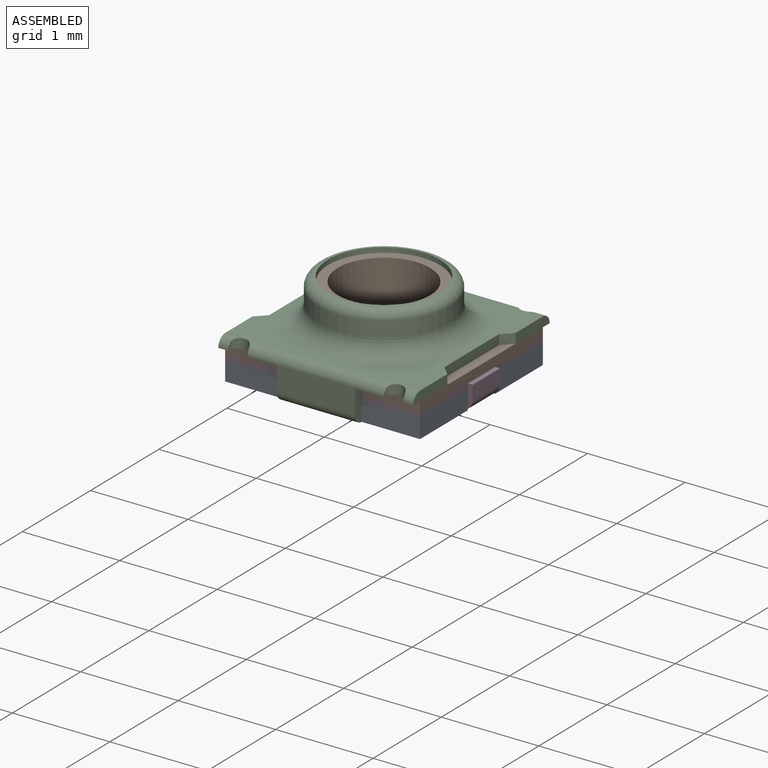
[diagram: assembled view]
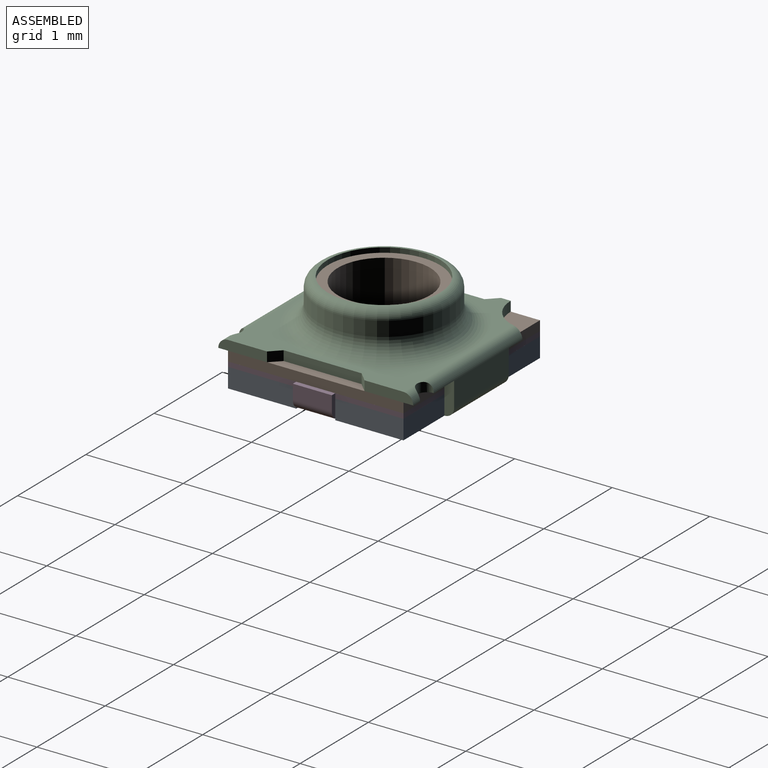
[diagram: assembled view, second angle]
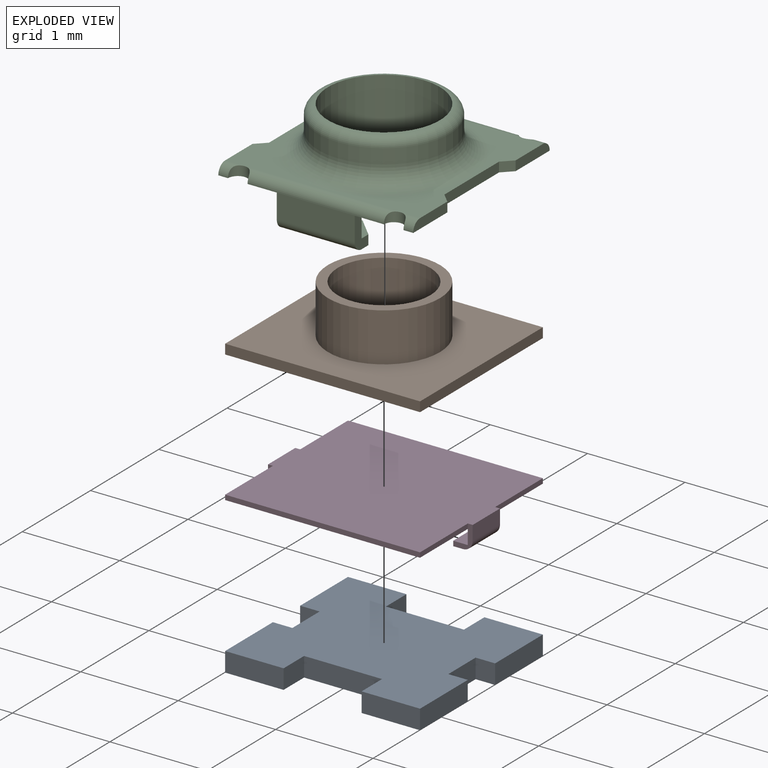
[diagram: exploded view]
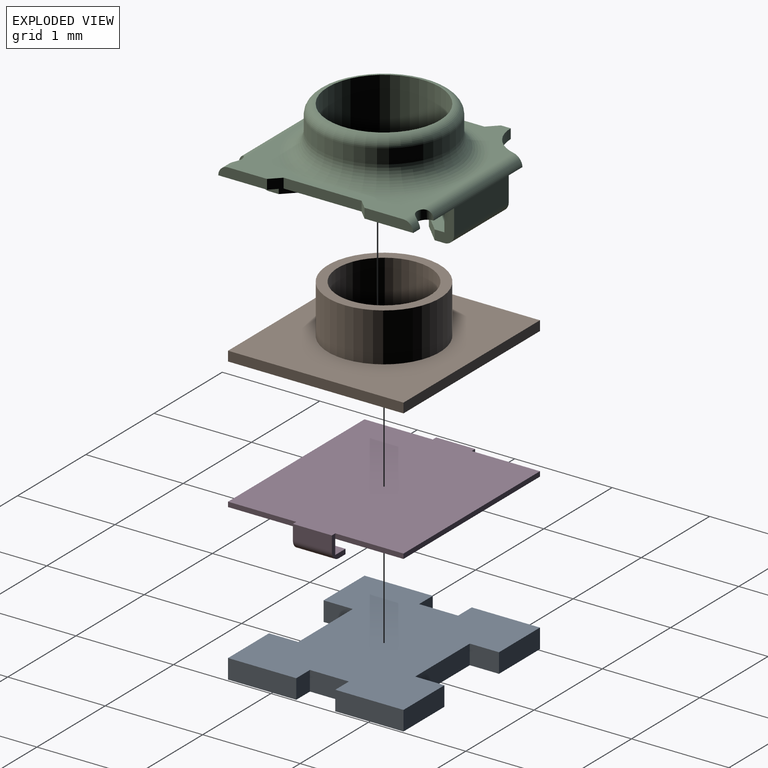
[diagram: exploded view, second angle]
ASSEMBLY  parts=4 mates=3
PART A: 22 faces, bbox 2x1.8x0.2 mm
  f0: plane 0.6x0.2mm, normal (0,-1,0), area 0.1mm2, adj f1,f19,f20,f21
  f1: plane 0.3x0.2mm, normal (1,0,0), area 0.1mm2, adj f0,f2,f20,f21
  f2: plane 0.8x0.2mm, normal (0,-1,0), area 0.2mm2, adj f1,f3,f20,f21
  f3: plane 0.3x0.2mm, normal (-1,0,0), area 0.1mm2, adj f2,f4,f20,f21
  f4: plane 0.6x0.2mm, normal (0,-1,0), area 0.1mm2, adj f3,f5,f20,f21
  f5: plane 0.7x0.2mm, normal (1,0,0), area 0.1mm2, adj f4,f6,f20,f21
  f6: plane 0.2x0.2mm, normal (0,1,0), area 0mm2, adj f5,f7,f20,f21
  f7: plane 0.4x0.2mm, normal (1,0,0), area 0.1mm2, adj f6,f8,f20,f21
  f8: plane 0.2x0.2mm, normal (0,-1,0), area 0mm2, adj f7,f9,f20,f21
  f9: plane 0.7x0.2mm, normal (1,0,0), area 0.1mm2, adj f8,f10,f20,f21
  f10: plane 0.6x0.2mm, normal (0,1,0), area 0.1mm2, adj f9,f11,f20,f21
  f11: plane 0.3x0.2mm, normal (-1,0,0), area 0.1mm2, adj f10,f12,f20,f21
  f12: plane 0.8x0.2mm, normal (0,1,0), area 0.2mm2, adj f11,f13,f20,f21
  f13: plane 0.3x0.2mm, normal (1,0,0), area 0.1mm2, adj f12,f14,f20,f21
  f14: plane 0.6x0.2mm, normal (0,1,0), area 0.1mm2, adj f13,f15,f20,f21
  f15: plane 0.7x0.2mm, normal (-1,0,0), area 0.1mm2, adj f14,f16,f20,f21
  f16: plane 0.2x0.2mm, normal (0,-1,0), area 0mm2, adj f15,f17,f20,f21
  f17: plane 0.4x0.2mm, normal (-1,0,0), area 0.1mm2, adj f16,f18,f20,f21
  f18: plane 0.2x0.2mm, normal (0,1,0), area 0mm2, adj f17,f19,f20,f21
  f19: plane 0.7x0.2mm, normal (-1,0,0), area 0.1mm2, adj f0,f18,f20,f21
  f20: plane 2x1.8mm, normal (0,0,1), area 3mm2, adj f0,f1,f2,f3,f4,f5,f6,f7
  f21: plane 2x1.8mm, normal (0,0,-1), area 3mm2, adj f0,f1,f2,f3,f4,f5,f6,f7
PART B: 11 faces, bbox 2x1.8x0.6 mm
  f0: plane 0.95x0.95mm, normal (0,0,1), area 0.5mm2, adj f4,f8
  f1: plane 2x0.1mm, normal (0,-1,0), area 0.2mm2, adj f2,f5,f6,f7
  f2: plane 1.8x0.1mm, normal (1,0,0), area 0.2mm2, adj f1,f3,f6,f7
  f3: plane 2x0.1mm, normal (0,1,0), area 0.2mm2, adj f2,f5,f6,f7
  f4: cylinder r=0.25mm len=0.5mm, axis (0,0,-1), area 0.2mm2, adj f0,f7
  f5: plane 1.8x0.1mm, normal (-1,0,0), area 0.2mm2, adj f1,f3,f6,f7
  f6: plane 2x1.8mm, normal (0,0,1), area 2.6mm2, adj f1,f2,f3,f5,f9
  f7: plane 2x1.8mm, normal (0,0,-1), area 3.4mm2, adj f1,f2,f3,f4,f5
  f8: cylinder r=0.47mm len=0.95mm, axis (0,0,-1), area 1.5mm2, adj f0,f10
  f9: cylinder r=0.57mm len=1.15mm, axis (0,0,-1), area 1.8mm2, adj f6,f10
  f10: plane 1.15x1.15mm, normal (0,0,1), area 0.3mm2, adj f8,f9
PART C: 45 faces, bbox 2x2x0.9 mm
  f0: plane 0.1x0.1mm, normal (0,-1,0), area 0mm2, adj f2,f5,f26,f43
  f1: plane 0.5x0.1mm, normal (0,1,0), area 0mm2, adj f2,f5,f31,f41
  f2: plane 2x2mm, normal (0,0,1), area 2.4mm2, adj f0,f1,f6,f7,f10,f11,f14,f17
  f3: plane 0.8x0.25mm, normal (1,0,0), area 0.2mm2, adj f19,f23,f34,f36
  f4: plane 0.8x0.25mm, normal (-1,0,0), area 0.2mm2, adj f14,f17,f33,f37
  f5: plane 2x1.8mm, normal (0,0,-1), area 0.9mm2, adj f0,f1,f6,f7,f26,f31,f32,f33
  f6: plane 0.5x0.1mm, normal (0,-1,0), area 0mm2, adj f2,f5,f35,f44
  f7: plane 0.5x0.1mm, normal (0,1,0), area 0mm2, adj f2,f5,f32,f42
  f8: plane 0.8x0.3mm, normal (0,0,1), area 0.2mm2, adj f14,f15,f16,f17,f18,f37
  f9: plane 0.8x0.3mm, normal (0,0,-1), area 0.2mm2, adj f11,f14,f15,f16,f17,f18
  f10: plane 0.8x0.25mm, normal (-1,0,0), area 0.2mm2, adj f2,f13,f19,f23
  f11: plane 0.8x0.25mm, normal (1,0,0), area 0.2mm2, adj f2,f9,f14,f17
  f12: plane 0.8x0.3mm, normal (0,0,1), area 0.2mm2, adj f19,f20,f21,f22,f23,f36
  f13: plane 0.8x0.3mm, normal (0,0,-1), area 0.2mm2, adj f10,f19,f20,f21,f22,f23
  f14: plane 0.35x0.2mm, normal (0,-1,0), area 0mm2, adj f2,f4,f8,f9,f11,f15,f37
  f15: plane 0.2x0.2mm, normal (0.71,-0.71,0), area 0mm2, adj f8,f9,f14,f16
  f16: plane 0.4x0.1mm, normal (1,0,0), area 0mm2, adj f8,f9,f15,f18
  f17: plane 0.35x0.2mm, normal (0,1,0), area 0mm2, adj f2,f4,f8,f9,f11,f18,f37
  f18: plane 0.2x0.2mm, normal (0.71,0.71,0), area 0mm2, adj f8,f9,f16,f17
  f19: plane 0.35x0.2mm, normal (0,-1,0), area 0mm2, adj f2,f3,f10,f12,f13,f20,f36
  f20: plane 0.2x0.2mm, normal (-0.71,-0.71,0), area 0mm2, adj f12,f13,f19,f21
  f21: plane 0.4x0.1mm, normal (-1,0,0), area 0mm2, adj f12,f13,f20,f22
  f22: plane 0.2x0.2mm, normal (-0.71,0.71,0), area 0mm2, adj f12,f13,f21,f23
  f23: plane 0.35x0.2mm, normal (0,1,0), area 0mm2, adj f2,f3,f10,f12,f13,f22,f36
  f24: cylinder r=0.57mm len=1.15mm, axis (0,0,1), area 2mm2, adj f2,f30
  f25: cylinder r=0.68mm len=1.35mm, axis (0,0,1), area 0.6mm2, adj f30,f38
  f26: cylinder r=0.4mm len=0.4mm, axis (0,0,-1), area 0.1mm2, adj f0,f2,f5,f34
  f27: cylinder r=0.1mm len=0.2mm, axis (0,0,-1), area 0mm2, adj f2,f33,f35
  f28: cylinder r=0.1mm len=0.2mm, axis (0,0,-1), area 0mm2, adj f2,f32,f33
  f29: cylinder r=0.1mm len=0.2mm, axis (0,0,-1), area 0mm2, adj f2,f31,f34
  f30: torus R=0.57mm, axis (0,0,-1), area 0.6mm2, adj f24,f25
  f31: cylinder r=0.1mm len=0.2mm, axis (0,1,0), area 0mm2, adj f1,f2,f5,f29
  f32: cylinder r=0.1mm len=0.2mm, axis (0,-1,0), area 0mm2, adj f2,f5,f7,f28
  f33: cylinder r=0.1mm len=1.6mm, axis (0,-1,0), area 0.2mm2, adj f2,f4,f5,f27,f28
  f34: cylinder r=0.1mm len=1.41mm, axis (0,1,0), area 0.2mm2, adj f2,f3,f5,f26,f29
  f35: cylinder r=0.1mm len=0.2mm, axis (0,-1,0), area 0mm2, adj f2,f5,f6,f27
  f36: cylinder r=0.1mm len=0.8mm, axis (0,-1,0), area 0.1mm2, adj f3,f12,f19,f23
  f37: cylinder r=0.1mm len=0.8mm, axis (0,1,0), area 0.1mm2, adj f4,f8,f14,f17
  f38: torus R=0.88mm, axis (0,0,1), area 1.5mm2, adj f5,f25
  f39: plane 0.8x0.1mm, normal (0,-1,0), area 0.1mm2, adj f2,f5,f43,f44
  f40: plane 0.8x0.1mm, normal (0,1,0), area 0.1mm2, adj f2,f5,f41,f42
  f41: plane 0.1x0.1mm, normal (-0.71,0.71,0), area 0mm2, adj f1,f2,f5,f40
  f42: plane 0.1x0.1mm, normal (0.71,0.71,0), area 0mm2, adj f2,f5,f7,f40
  f43: plane 0.1x0.1mm, normal (-0.71,-0.71,0), area 0mm2, adj f0,f2,f5,f39
  f44: plane 0.1x0.1mm, normal (0.71,-0.71,0), area 0mm2, adj f2,f5,f6,f39
PART D: 24 faces, bbox 2.1x1.8x0.3 mm
  f0: plane 0.4x0.15mm, normal (-1,0,0), area 0.1mm2, adj f4,f12,f13,f19
  f1: plane 2x0.05mm, normal (0,-1,0), area 0.1mm2, adj f4,f5,f21,f22
  f2: plane 0.4x0.15mm, normal (1,0,0), area 0.1mm2, adj f4,f15,f16,f18
  f3: plane 2x0.05mm, normal (0,1,0), area 0.1mm2, adj f4,f5,f20,f23
  f4: plane 2.1x1.8mm, normal (0,0,1), area 3.6mm2, adj f0,f1,f2,f3,f12,f13,f15,f16
  f5: plane 2x1.8mm, normal (0,0,-1), area 3.6mm2, adj f1,f3,f8,f10,f20,f21,f22,f23
  f6: plane 0.4x0.1mm, normal (0,0,-1), area 0mm2, adj f12,f13,f14,f19
  f7: plane 0.4x0.1mm, normal (0,0,-1), area 0mm2, adj f15,f16,f17,f18
  f8: plane 0.4x0.15mm, normal (-1,0,0), area 0.1mm2, adj f5,f11,f15,f16
  f9: plane 0.4x0.15mm, normal (0,0,1), area 0.1mm2, adj f10,f12,f13,f14
  f10: plane 0.4x0.15mm, normal (1,0,0), area 0.1mm2, adj f5,f9,f12,f13
  f11: plane 0.4x0.15mm, normal (0,0,1), area 0.1mm2, adj f8,f15,f16,f17
  f12: plane 0.25x0.2mm, normal (0,1,0), area 0mm2, adj f0,f4,f6,f9,f10,f14,f19,f23
  f13: plane 0.25x0.2mm, normal (0,-1,0), area 0mm2, adj f0,f4,f6,f9,f10,f14,f19,f22
  f14: plane 0.4x0.05mm, normal (1,0,0), area 0mm2, adj f6,f9,f12,f13
  f15: plane 0.25x0.2mm, normal (0,1,0), area 0mm2, adj f2,f4,f7,f8,f11,f17,f18,f20
  f16: plane 0.25x0.2mm, normal (0,-1,0), area 0mm2, adj f2,f4,f7,f8,f11,f17,f18,f21
  f17: plane 0.4x0.05mm, normal (-1,0,0), area 0mm2, adj f7,f11,f15,f16
  f18: cylinder r=0.1mm len=0.4mm, axis (0,1,0), area 0.1mm2, adj f2,f7,f15,f16
  f19: cylinder r=0.1mm len=0.4mm, axis (0,-1,0), area 0.1mm2, adj f0,f6,f12,f13
  f20: plane 0.7x0.05mm, normal (1,0,0), area 0mm2, adj f3,f4,f5,f15
  f21: plane 0.7x0.05mm, normal (1,0,0), area 0mm2, adj f1,f4,f5,f16
  f22: plane 0.7x0.05mm, normal (-1,0,0), area 0mm2, adj f1,f4,f5,f13
  f23: plane 0.7x0.05mm, normal (-1,0,0), area 0mm2, adj f3,f4,f5,f12
PLACE A t=(-0.94,-0.5,-0.08)mm fixed
PLACE B t=(-0.94,-0.5,0.17)mm
PLACE C rot(axis=(0.71,0.71,0),180deg) t=(-0.94,-0.5,0.37)mm
PLACE D t=(-0.94,-0.5,-0.08)mm
MATE fastened B.f9 <-> C.f24  axis (0,0,1) through (-0.94,-0.5,0.27)mm
MATE fastened B.f4 <-> D.f4  axis (0,0,-1) through (-0.94,-0.5,0.17)mm
MATE fastened D.f5 <-> A.f20  axis (0,0,-1) through (-0.94,-0.5,0.12)mm
